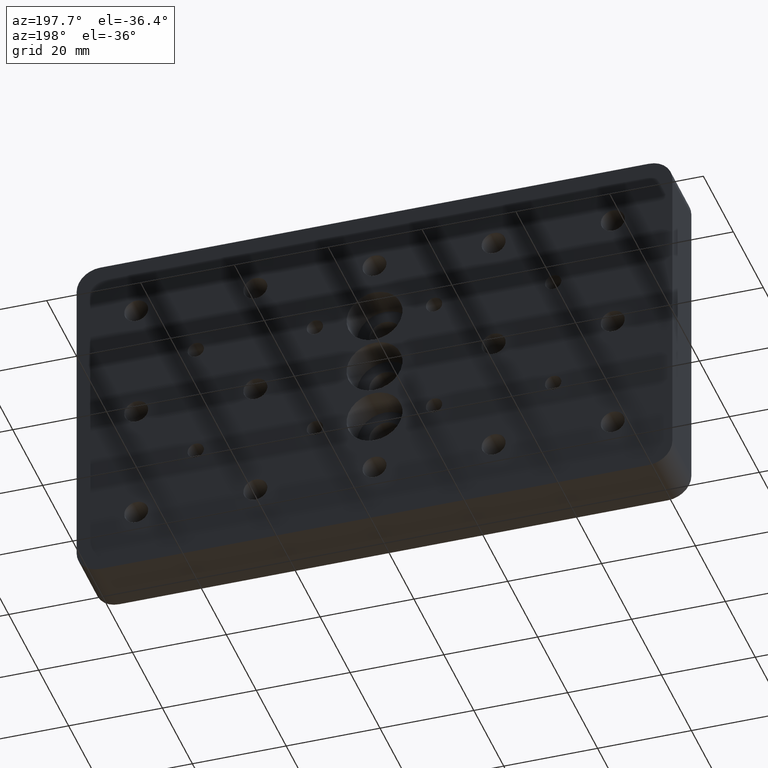
[diagram: clean part render]
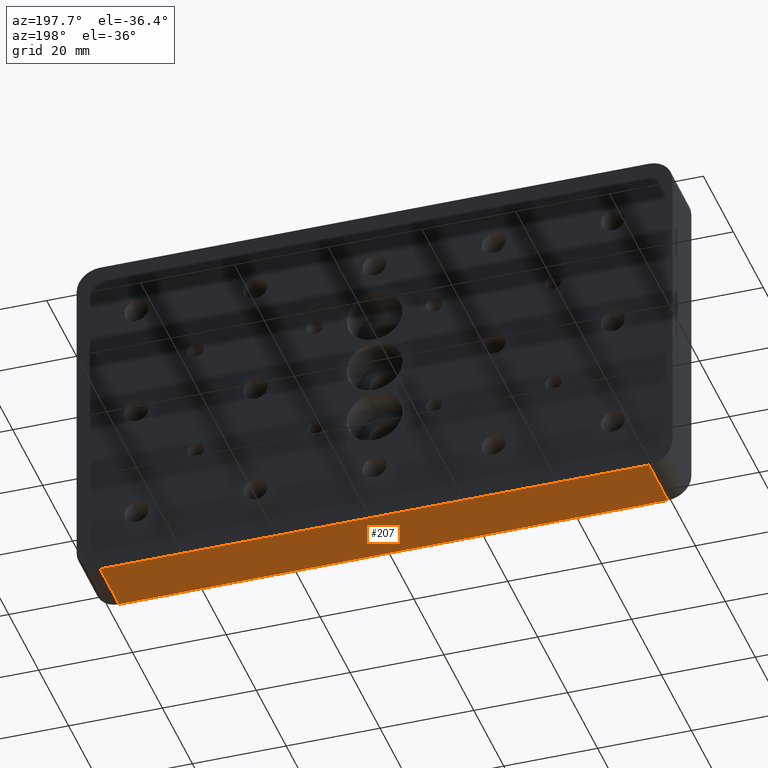
[diagram: same view with one face highlighted and labeled with its STEP entity id]
A machine part, auxiliary view. The second image highlights one B-rep face of the part: STEP entity #207.
In plain terms, the highlighted planar face has unit normal (0, 0, 1).
Its self-contained STEP definition (entity closure, byte-faithful):
#5 = VERTEX_POINT ( 'NONE', #1792 ) ;
#39 = VECTOR ( 'NONE', #2414, 1000.000000000000000 ) ;
#62 = CARTESIAN_POINT ( 'NONE',  ( -58.50000000000000000, 6.349999999999999600, -38.00000000000000000 ) ) ;
#115 = VERTEX_POINT ( 'NONE', #1621 ) ;
#207 = ADVANCED_FACE ( 'NONE', ( #1005 ), #2070, .F. ) ;
#347 = LINE ( 'NONE', #1779, #1469 ) ;
#415 = LINE ( 'NONE', #529, #1536 ) ;
#422 = VERTEX_POINT ( 'NONE', #761 ) ;
#484 = ORIENTED_EDGE ( 'NONE', *, *, #1199, .T. ) ;
#529 = CARTESIAN_POINT ( 'NONE',  ( -63.50000000000000000, 6.349999999999999600, -38.00000000000000000 ) ) ;
#570 = VECTOR ( 'NONE', #1972, 1000.000000000000000 ) ;
#616 = LINE ( 'NONE', #1085, #39 ) ;
#761 = CARTESIAN_POINT ( 'NONE',  ( -58.50000000000000000, 6.349999999999999600, -38.00000000000000000 ) ) ;
#773 = CARTESIAN_POINT ( 'NONE',  ( -58.50000000000000000, -6.349999999999999600, -38.00000000000000000 ) ) ;
#793 = EDGE_LOOP ( 'NONE', ( #2368, #1487, #484, #1458 ) ) ;
#907 = DIRECTION ( 'NONE',  ( -1.000000000000000000, -0.0000000000000000000, -0.0000000000000000000 ) ) ;
#918 = AXIS2_PLACEMENT_3D ( 'NONE', #920, #2042, #1468 ) ;
#920 = CARTESIAN_POINT ( 'NONE',  ( -63.50000000000000000, 6.349999999999999600, -38.00000000000000000 ) ) ;
#960 = EDGE_CURVE ( 'NONE', #5, #422, #415, .T. ) ;
#1005 = FACE_OUTER_BOUND ( 'NONE', #793, .T. ) ;
#1085 = CARTESIAN_POINT ( 'NONE',  ( 58.50000000000000000, 6.349999999999999600, -38.00000000000000000 ) ) ;
#1199 = EDGE_CURVE ( 'NONE', #115, #2064, #347, .T. ) ;
#1404 = EDGE_CURVE ( 'NONE', #5, #115, #616, .T. ) ;
#1458 = ORIENTED_EDGE ( 'NONE', *, *, #1773, .T. ) ;
#1468 = DIRECTION ( 'NONE',  ( 1.000000000000000000, 0.0000000000000000000, -0.0000000000000000000 ) ) ;
#1469 = VECTOR ( 'NONE', #1967, 1000.000000000000000 ) ;
#1487 = ORIENTED_EDGE ( 'NONE', *, *, #1404, .T. ) ;
#1536 = VECTOR ( 'NONE', #907, 1000.000000000000000 ) ;
#1603 = LINE ( 'NONE', #62, #570 ) ;
#1621 = CARTESIAN_POINT ( 'NONE',  ( 58.50000000000000000, -6.349999999999999600, -38.00000000000000000 ) ) ;
#1773 = EDGE_CURVE ( 'NONE', #2064, #422, #1603, .T. ) ;
#1779 = CARTESIAN_POINT ( 'NONE',  ( -63.50000000000000000, -6.349999999999999600, -38.00000000000000000 ) ) ;
#1792 = CARTESIAN_POINT ( 'NONE',  ( 58.50000000000000000, 6.349999999999999600, -38.00000000000000000 ) ) ;
#1967 = DIRECTION ( 'NONE',  ( -1.000000000000000000, -0.0000000000000000000, -0.0000000000000000000 ) ) ;
#1972 = DIRECTION ( 'NONE',  ( -0.0000000000000000000, 1.000000000000000000, -0.0000000000000000000 ) ) ;
#2042 = DIRECTION ( 'NONE',  ( 0.0000000000000000000, 0.0000000000000000000, 1.000000000000000000 ) ) ;
#2064 = VERTEX_POINT ( 'NONE', #773 ) ;
#2070 = PLANE ( 'NONE',  #918 ) ;
#2368 = ORIENTED_EDGE ( 'NONE', *, *, #960, .F. ) ;
#2414 = DIRECTION ( 'NONE',  ( 0.0000000000000000000, -1.000000000000000000, 0.0000000000000000000 ) ) ;